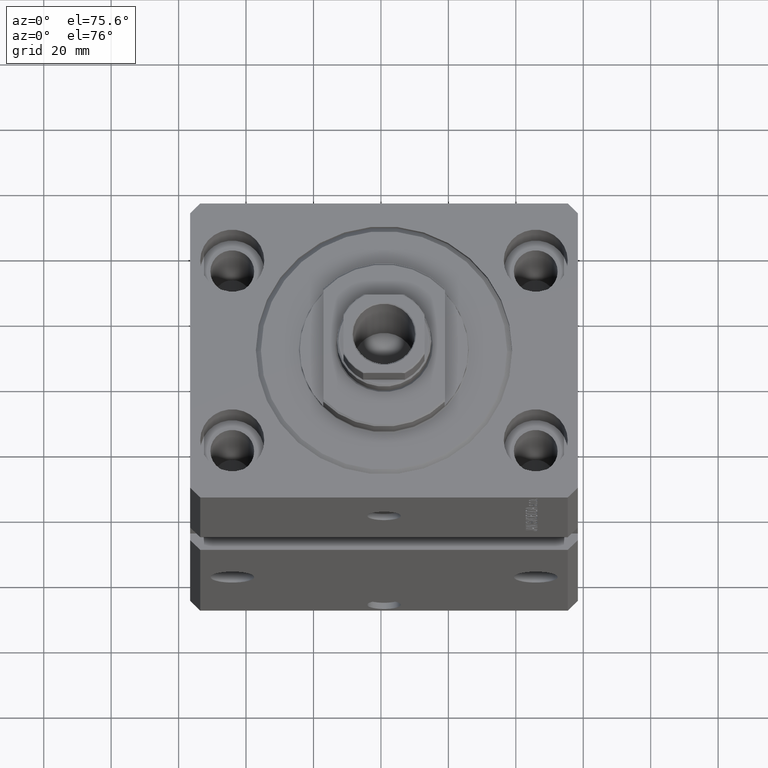
[diagram: clean part render]
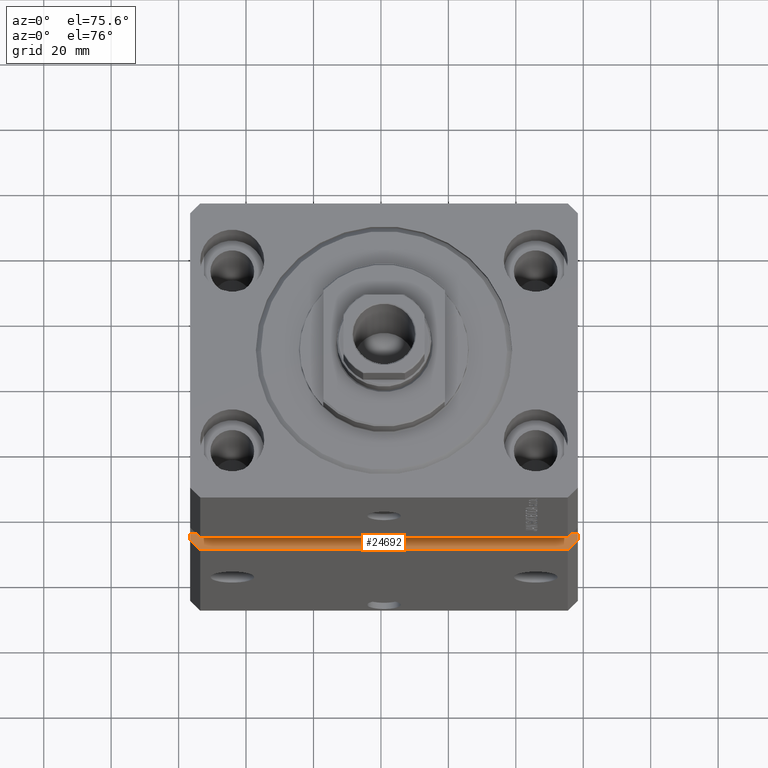
[diagram: same view with one face highlighted and labeled with its STEP entity id]
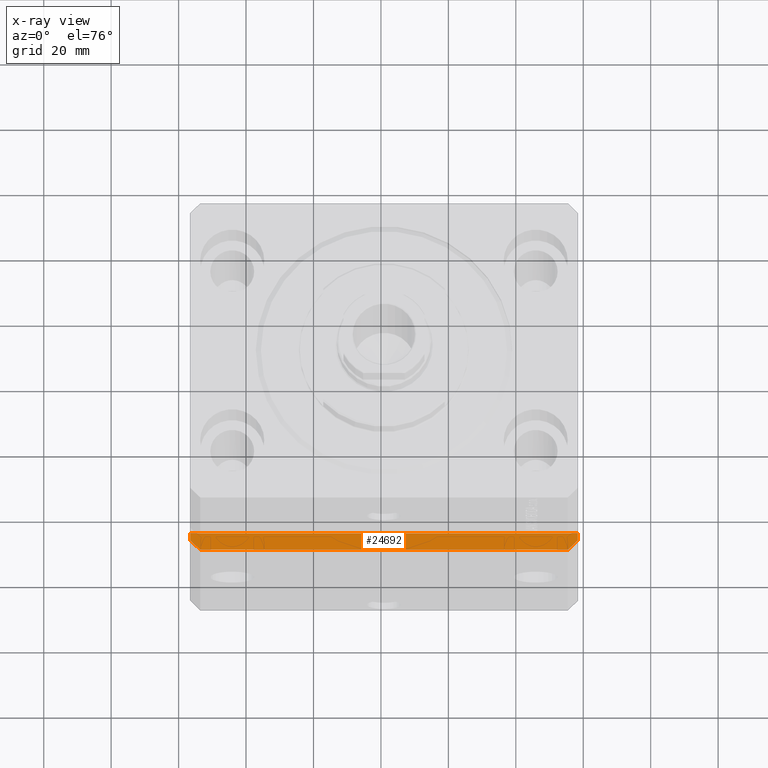
[diagram: x-ray of the same camera — body ghosted, the highlighted face saturated]
A machine part, auxiliary view. The second image highlights one B-rep face of the part: STEP entity #24692.
The next image is the same camera in x-ray: the body ghosted, the highlighted face saturated — about 0% of this face is hidden behind the body in this view.
In plain terms, the highlighted planar face has unit normal (0, 0, -1).
Its self-contained STEP definition (entity closure, byte-faithful):
#1089 = VECTOR ( 'NONE', #19167, 1000.000000000000000 ) ;
#1149 = CARTESIAN_POINT ( 'NONE',  ( -57.50000000000000711, -40.00000000000000000, -62.50000000000000000 ) ) ;
#1445 = VERTEX_POINT ( 'NONE', #25126 ) ;
#2897 = ORIENTED_EDGE ( 'NONE', *, *, #47105, .F. ) ;
#2989 = DIRECTION ( 'NONE',  ( 1.000000000000000000, 1.206764157201257045E-16, 6.033820786006285224E-17 ) ) ;
#3805 = DIRECTION ( 'NONE',  ( 6.033820786006285224E-17, 7.096278350727574851E-33, -1.000000000000000000 ) ) ;
#5767 = CARTESIAN_POINT ( 'NONE',  ( -57.50000000000000711, -45.00000000000000000, -62.50000000000000000 ) ) ;
#6036 = VECTOR ( 'NONE', #21731, 1000.000000000000000 ) ;
#8908 = EDGE_LOOP ( 'NONE', ( #28059, #2897, #16961, #31025, #27318, #34785 ) ) ;
#9049 = LINE ( 'NONE', #5767, #34572 ) ;
#9321 = VERTEX_POINT ( 'NONE', #26732 ) ;
#12036 = CARTESIAN_POINT ( 'NONE',  ( 54.49999999999997868, -44.99999999999998579, -62.49999999999999289 ) ) ;
#13066 = VERTEX_POINT ( 'NONE', #12036 ) ;
#14352 = DIRECTION ( 'NONE',  ( -1.000000000000000000, 0.000000000000000000, -6.033820786006285224E-17 ) ) ;
#16961 = ORIENTED_EDGE ( 'NONE', *, *, #17974, .F. ) ;
#17091 = VERTEX_POINT ( 'NONE', #26566 ) ;
#17974 = EDGE_CURVE ( 'NONE', #9321, #34313, #24033, .T. ) ;
#18167 = CARTESIAN_POINT ( 'NONE',  ( 57.50000000000000711, -39.99999999999998579, -62.49999999999999289 ) ) ;
#18468 = EDGE_CURVE ( 'NONE', #13066, #1445, #46051, .T. ) ;
#19150 = DIRECTION ( 'NONE',  ( 0.7071067811865483499, 0.7071067811865466846, 4.266555594249394319E-17 ) ) ;
#19167 = DIRECTION ( 'NONE',  ( 1.176083712526788232E-16, -1.000000000000000000, -0.000000000000000000 ) ) ;
#21578 = VECTOR ( 'NONE', #19150, 1000.000000000000000 ) ;
#21731 = DIRECTION ( 'NONE',  ( 1.176083712526788232E-16, -1.000000000000000000, -0.000000000000000000 ) ) ;
#21986 = EDGE_CURVE ( 'NONE', #32932, #13066, #9049, .T. ) ;
#24033 = LINE ( 'NONE', #1149, #36045 ) ;
#24692 = ADVANCED_FACE ( 'NONE', ( #26185 ), #26683, .F. ) ;
#25126 = CARTESIAN_POINT ( 'NONE',  ( 57.50000000000000711, -41.99999999999998579, -62.49999999999999289 ) ) ;
#25530 = CARTESIAN_POINT ( 'NONE',  ( -57.50000000000000711, -40.00000000000000000, -62.50000000000000000 ) ) ;
#26185 = FACE_OUTER_BOUND ( 'NONE', #8908, .T. ) ;
#26566 = CARTESIAN_POINT ( 'NONE',  ( -57.50000000000000711, -42.00000000000000711, -62.50000000000000000 ) ) ;
#26683 = PLANE ( 'NONE',  #33022 ) ;
#26732 = CARTESIAN_POINT ( 'NONE',  ( -57.50000000000000711, -40.00000000000000000, -62.50000000000000000 ) ) ;
#26790 = LINE ( 'NONE', #34801, #33203 ) ;
#27318 = ORIENTED_EDGE ( 'NONE', *, *, #32718, .T. ) ;
#28059 = ORIENTED_EDGE ( 'NONE', *, *, #18468, .T. ) ;
#29914 = CARTESIAN_POINT ( 'NONE',  ( -54.50000000000000711, -45.00000000000000000, -62.50000000000000000 ) ) ;
#30444 = CARTESIAN_POINT ( 'NONE',  ( -57.50000000000000711, -40.00000000000000000, -62.50000000000000000 ) ) ;
#30790 = DIRECTION ( 'NONE',  ( 0.7071067811865491270, -0.7071067811865459074, 4.266555594249397400E-17 ) ) ;
#31025 = ORIENTED_EDGE ( 'NONE', *, *, #35388, .T. ) ;
#32718 = EDGE_CURVE ( 'NONE', #17091, #32932, #26790, .T. ) ;
#32932 = VERTEX_POINT ( 'NONE', #29914 ) ;
#33022 = AXIS2_PLACEMENT_3D ( 'NONE', #30444, #3805, #14352 ) ;
#33203 = VECTOR ( 'NONE', #30790, 1000.000000000000000 ) ;
#34313 = VERTEX_POINT ( 'NONE', #39604 ) ;
#34572 = VECTOR ( 'NONE', #2989, 1000.000000000000000 ) ;
#34721 = CARTESIAN_POINT ( 'NONE',  ( 54.50000000000000711, -44.99999999999998579, -62.50000000000000000 ) ) ;
#34785 = ORIENTED_EDGE ( 'NONE', *, *, #21986, .T. ) ;
#34801 = CARTESIAN_POINT ( 'NONE',  ( -57.50000000000000711, -42.00000000000000711, -62.50000000000000000 ) ) ;
#35388 = EDGE_CURVE ( 'NONE', #9321, #17091, #48635, .T. ) ;
#36045 = VECTOR ( 'NONE', #36078, 1000.000000000000000 ) ;
#36078 = DIRECTION ( 'NONE',  ( 1.000000000000000000, 1.206764157201257045E-16, 6.033820786006285224E-17 ) ) ;
#39604 = CARTESIAN_POINT ( 'NONE',  ( 57.50000000000000711, -39.99999999999998579, -62.49999999999999289 ) ) ;
#46051 = LINE ( 'NONE', #34721, #21578 ) ;
#47105 = EDGE_CURVE ( 'NONE', #34313, #1445, #49077, .T. ) ;
#48635 = LINE ( 'NONE', #25530, #6036 ) ;
#49077 = LINE ( 'NONE', #18167, #1089 ) ;